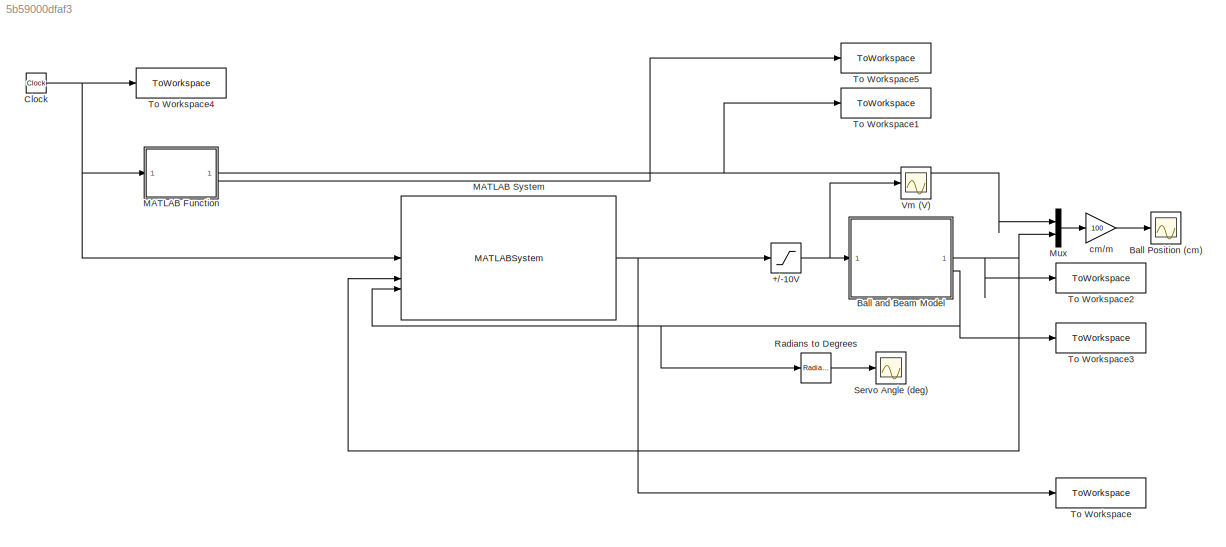
MODEL slx_5b59000dfaf3
KIND model
CONFIG AbsTol = auto
CONFIG EnableMultiTasking = off
CONFIG FixedStep = 0.002
CONFIG MaxStep = auto
CONFIG MinStep = auto
CONFIG RelTol = 1e-3
CONFIG SampleTimeConstraint = Unconstrained
CONFIG SolverName = ode4
CONFIG StartTime = 0.0
CONFIG StopTime = 4
BLOCK [Saturate] +//-10V
  LowerLimit = -10
  UpperLimit = 10
BLOCK [Scope] Ball Position (cm)
  Floating = off
  NumInputPorts = 1
  ScopeSpecificationString = Simulink.scopes.TimeScopeBlockCfg('CurrentConfiguration', extmgr.ConfigurationSet(extmgr.Configuration('Core','General UI',true),extmgr.Configuration('Core','Source UI',true),extmgr.Configuration('Sources','WiredSimulink',true,'DataLoggingVariableName','ScopeData1','DataLogging',true,'DataLoggingSaveFormat','StructureWithTime'),extmgr.Configuration('Visuals','Time Domain',true,'SerializedDisplays'...<+1568ch>
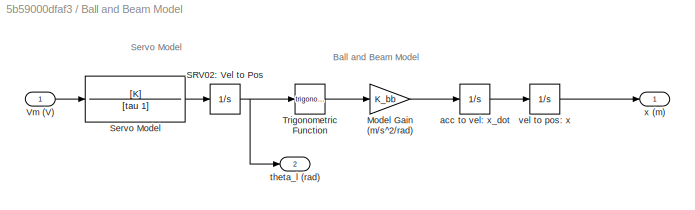
BLOCK [SubSystem] Ball and Beam Model
BLOCK [Gain] Ball and Beam Model/Model Gain (m//s^2//rad)
  Gain = K_bb
BLOCK [Integrator] Ball and Beam Model/SRV02: Vel to Pos
BLOCK [TransferFcn] Ball and Beam Model/Servo Model
  Denominator = [tau 1]
  Numerator = [K]
BLOCK [Trigonometry] Ball and Beam Model/Trigonometric Function
BLOCK [Inport] Ball and Beam Model/Vm (V)
BLOCK [Integrator] Ball and Beam Model/acc to vel: x_dot
BLOCK [Outport] Ball and Beam Model/theta_l (rad)
  Port = 2
BLOCK [Integrator] Ball and Beam Model/vel to pos: x
BLOCK [Outport] Ball and Beam Model/x (m)
BLOCK [Clock] Clock
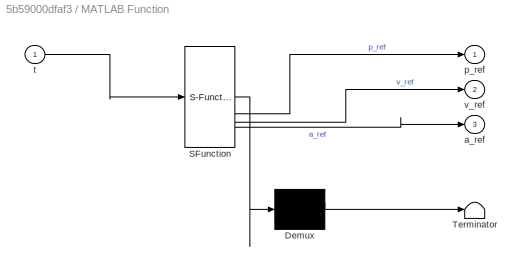
BLOCK [SubSystem] MATLAB Function
  ErrorFcn = Stateflow.Translate.translate
  PermitHierarchicalResolution = ExplicitOnly
  SFBlockType = MATLAB Function
  TreatAsAtomicUnit = on
BLOCK [Demux] MATLAB Function/ Demux 
  Outputs = 1
BLOCK [S-Function] MATLAB Function/ SFunction 
  EnableBusSupport = on
  FunctionName = sf_sfun
  PortCounts = [1 4]
  SFcnIsStateOwnerBlock = off
  SFunctionDeploymentMode = off
  Tag = Stateflow S-Function 2
BLOCK [Terminator] MATLAB Function/ Terminator 
BLOCK [Outport] MATLAB Function/a_ref
  Port = 3
BLOCK [Outport] MATLAB Function/p_ref
BLOCK [Inport] MATLAB Function/t
BLOCK [Outport] MATLAB Function/v_ref
  Port = 2
BLOCK [MATLABSystem] MATLAB System
  MaskDisplay = disp('studentControllerInterface');\nport_label('input',1,'t');\nport_label('input',2,'p_ball');\nport_label('input',3,'theta');\nport_label('output',1,'V_servo');
  MaskType = studentControllerInterface
  SimulateUsing = Code generation
  System = studentControllerInterface
BLOCK [Mux] Mux
  DisplayOption = bar
  Inputs = 2
BLOCK [Reference] Radians to Degrees  REF=simulink_extras/Transformations/Radians
to Degrees
  SourceBlock = simulink_extras/Transformations/Radians\nto Degrees
  SourceType = RadiansToDegrees
BLOCK [Scope] Servo Angle (deg)
  Floating = off
  NumInputPorts = 1
  ScopeSpecificationString = Simulink.scopes.TimeScopeBlockCfg('CurrentConfiguration', extmgr.ConfigurationSet(extmgr.Configuration('Core','General UI',true),extmgr.Configuration('Core','Source UI',true),extmgr.Configuration('Sources','WiredSimulink',true,'DataLoggingVariableName','ScopeData2','DataLogging',true,'DataLoggingSaveFormat','StructureWithTime'),extmgr.Configuration('Visuals','Time Domain',true,'SerializedDisplays'...<+1509ch>
BLOCK [ToWorkspace] To Workspace
  FixptAsFi = on
  MaxDataPoints = inf
  SampleTime = 0.01
  Save2DSignal = 2-D array (concatenate along first dimension)
  VariableName = us
BLOCK [ToWorkspace] To Workspace1
  FixptAsFi = on
  MaxDataPoints = inf
  SampleTime = 0.01
  Save2DSignal = 2-D array (concatenate along first dimension)
  VariableName = ref_ps
BLOCK [ToWorkspace] To Workspace2
  FixptAsFi = on
  MaxDataPoints = inf
  SampleTime = 0.01
  Save2DSignal = 2-D array (concatenate along first dimension)
  VariableName = ps
BLOCK [ToWorkspace] To Workspace3
  FixptAsFi = on
  MaxDataPoints = inf
  SampleTime = 0.01
  Save2DSignal = 2-D array (concatenate along first dimension)
  VariableName = thetas
BLOCK [ToWorkspace] To Workspace4
  FixptAsFi = on
  MaxDataPoints = inf
  SampleTime = 0.01
  Save2DSignal = 2-D array (concatenate along first dimension)
  VariableName = ts
BLOCK [ToWorkspace] To Workspace5
  FixptAsFi = on
  MaxDataPoints = inf
  SampleTime = 0.01
  Save2DSignal = 2-D array (concatenate along first dimension)
  VariableName = ref_vs
BLOCK [Scope] Vm (V)
  Floating = off
  NumInputPorts = 1
  ScopeSpecificationString = Simulink.scopes.TimeScopeBlockCfg('CurrentConfiguration', extmgr.ConfigurationSet(extmgr.Configuration('Core','General UI',true),extmgr.Configuration('Core','Source UI',true),extmgr.Configuration('Sources','WiredSimulink',true,'DataLogging',true,'DataLoggingSaveFormat','StructureWithTime'),extmgr.Configuration('Visuals','Time Domain',true,'SerializedDisplays',{struct('MinYLimReal','-12.5','MaxYLim...<+1427ch>
BLOCK [Gain] cm//m
  Gain = 100
ANNOTATION Ball and Beam Model: Ball and Beam Model
ANNOTATION Ball and Beam Model: Servo Model
NET +//-10V:1 -> Ball and Beam Model:1, Vm (V):1
LINE Ball and Beam Model/Model Gain (m//s^2//rad):1 -> Ball and Beam Model/acc to vel: x_dot:1
NET Ball and Beam Model/SRV02: Vel to Pos:1 -> Ball and Beam Model/Trigonometric Function:1, Ball and Beam Model/theta_l (rad):1
LINE Ball and Beam Model/Servo Model:1 -> Ball and Beam Model/SRV02: Vel to Pos:1
LINE Ball and Beam Model/Trigonometric Function:1 -> Ball and Beam Model/Model Gain (m//s^2//rad):1
LINE Ball and Beam Model/Vm (V):1 -> Ball and Beam Model/Servo Model:1
LINE Ball and Beam Model/acc to vel: x_dot:1 -> Ball and Beam Model/vel to pos: x:1
LINE Ball and Beam Model/vel to pos: x:1 -> Ball and Beam Model/x (m):1
NET Ball and Beam Model:1 -> MATLAB System:2, Mux:2, To Workspace2:1
NET Ball and Beam Model:2 -> MATLAB System:3, Radians to Degrees:1, To Workspace3:1
NET Clock:1 -> MATLAB Function:1, MATLAB System:1, To Workspace4:1
NET MATLAB Function:1 -> Mux:1, To Workspace1:1
LINE MATLAB Function:2 -> To Workspace5:1
NET MATLAB System:1 -> +//-10V:1, To Workspace:1
LINE Mux:1 -> cm//m:1
LINE Radians to Degrees:1 -> Servo Angle (deg):1
LINE cm//m:1 -> Ball Position (cm):1
note: NET lines group one-source signal fan-out (src -> all destinations, sorted); 1:1 wires keep LINE
CHART MATLAB Function states=1 transitions=1
  STATE_LABEL 'eML_blk_kernel()'
  STATE_LABEL 'SCRIPT:\nfunction [p_ref, v_ref, a_ref] = fcn(t)\n\n[p_ref, v_ref, a_ref] = get_ref_traj(t);'
CHART  states=0 transitions=0
